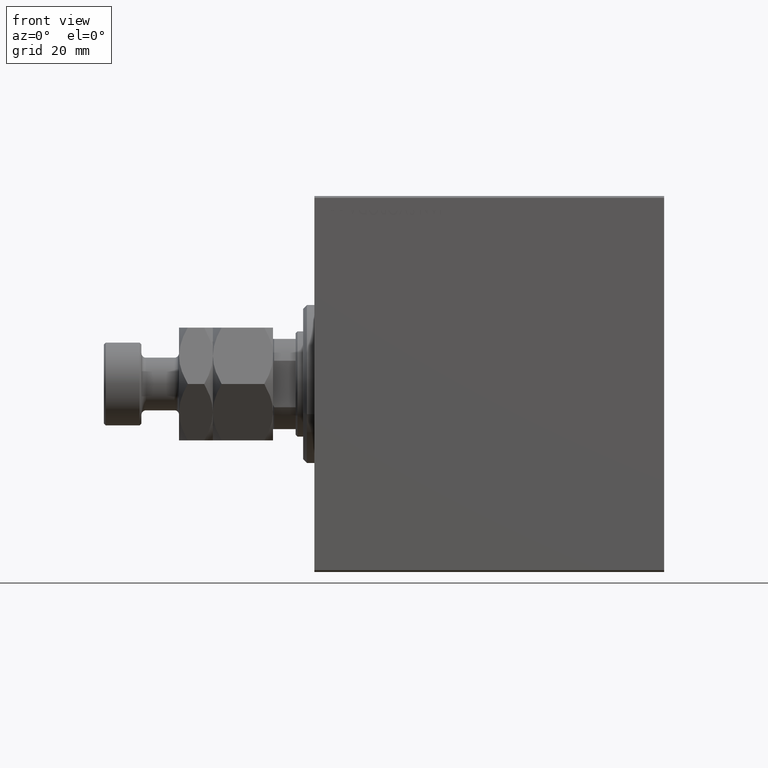
[diagram: clean part render]
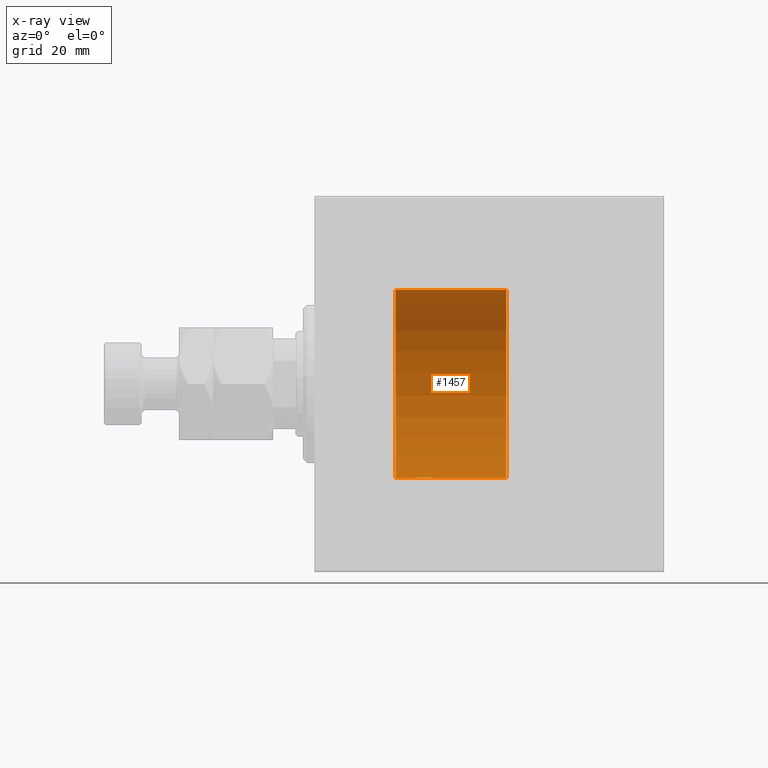
[diagram: x-ray — body ghosted, one internal face saturated and labeled with its STEP entity id]
A machine part, front view, then the same camera in x-ray: the body is ghosted and one INTERNAL B-rep face — a face not visible from any outside direction — is saturated and labeled: STEP entity #1457.
In plain terms, the highlighted cylindrical surface (partial cylindrical patch) has radius 25 mm, axis along (-1, -0, -0).
Its self-contained STEP definition (entity closure, byte-faithful):
#26 = CARTESIAN_POINT ( 'NONE',  ( 30.25371533481192898, 2.169035936979791135, -24.90589343070811168 ) ) ;
#249 = CARTESIAN_POINT ( 'NONE',  ( 31.50000000000000000, 3.061616978460191625E-15, -25.00000000000000000 ) ) ;
#475 = CARTESIAN_POINT ( 'NONE',  ( 30.98758834612092983, 1.525124164792373671, -24.95380474534676907 ) ) ;
#713 = CARTESIAN_POINT ( 'NONE',  ( 29.80463913299814038, 2.372637051600632319, -24.88723676875459034 ) ) ;
#1457 = ADVANCED_FACE ( 'NONE', ( #16472 ), #19704, .F. ) ;
#1585 = CIRCLE ( 'NONE', #5280, 25.00000000000000000 ) ;
#2391 = CARTESIAN_POINT ( 'NONE',  ( 51.00000000000000000, 0.000000000000000000, 0.000000000000000000 ) ) ;
#3108 = ORIENTED_EDGE ( 'NONE', *, *, #11932, .F. ) ;
#3660 = VECTOR ( 'NONE', #39742, 1000.000000000000000 ) ;
#3722 = CARTESIAN_POINT ( 'NONE',  ( 31.37237109198581209, 0.8054273576766401987, -24.98748174524255461 ) ) ;
#3833 = CARTESIAN_POINT ( 'NONE',  ( 31.50000000000000000, 3.061616978460191625E-15, -25.00000000000000000 ) ) ;
#4180 = CARTESIAN_POINT ( 'NONE',  ( 29.64874342732638723, 2.419890192637125459, -24.88262770889313913 ) ) ;
#5280 = AXIS2_PLACEMENT_3D ( 'NONE', #34124, #24385, #23923 ) ;
#6103 = VERTEX_POINT ( 'NONE', #24566 ) ;
#6954 = CARTESIAN_POINT ( 'NONE',  ( 27.34785002149174815, 1.883339088673197770, -24.92922739080161065 ) ) ;
#7172 = CARTESIAN_POINT ( 'NONE',  ( 26.50000000000000355, 0.1652919547268401901, -24.99999999999999289 ) ) ;
#7588 = CARTESIAN_POINT ( 'NONE',  ( 51.00000000000000000, 3.061616997868383043E-15, -25.00000000000000000 ) ) ;
#7862 = CARTESIAN_POINT ( 'NONE',  ( 28.83592030623262659, 2.499940606140140353, -24.87469189697262095 ) ) ;
#7917 = ORIENTED_EDGE ( 'NONE', *, *, #41615, .T. ) ;
#8425 = VERTEX_POINT ( 'NONE', #34332 ) ;
#8639 = CARTESIAN_POINT ( 'NONE',  ( 51.00000000000000000, 0.000000000000000000, 25.00000000000000000 ) ) ;
#9695 = AXIS2_PLACEMENT_3D ( 'NONE', #27460, #17034, #31599 ) ;
#10802 = VECTOR ( 'NONE', #36667, 1000.000000000000000 ) ;
#10863 = CARTESIAN_POINT ( 'NONE',  ( 31.41966436084114989, 0.6495680347195884607, -24.99207398768918864 ) ) ;
#11102 = CARTESIAN_POINT ( 'NONE',  ( 28.35083484000673693, 2.419847904056437127, -24.88263203448060423 ) ) ;
#11932 = EDGE_CURVE ( 'NONE', #6103, #31736, #44419, .T. ) ;
#13083 = VECTOR ( 'NONE', #22276, 1000.000000000000000 ) ;
#14331 = CARTESIAN_POINT ( 'NONE',  ( 30.10745236819796133, 2.247309494740957980, -24.89886665287248135 ) ) ;
#14559 = CARTESIAN_POINT ( 'NONE',  ( 30.88423301929986664, 1.651337078997087593, -24.94567646296264485 ) ) ;
#14795 = CARTESIAN_POINT ( 'NONE',  ( 31.50000000000000711, 0.1632133729155569590, -25.00000000000000355 ) ) ;
#14884 = CARTESIAN_POINT ( 'NONE',  ( 21.60000000000000142, 3.061616997868383043E-15, -25.00000000000000000 ) ) ;
#15023 = CARTESIAN_POINT ( 'NONE',  ( 27.01175333178059290, 1.524323445682836953, -24.95385641887458661 ) ) ;
#15644 = EDGE_CURVE ( 'NONE', #8425, #28847, #1585, .T. ) ;
#16057 = CARTESIAN_POINT ( 'NONE',  ( 51.00000000000000000, 3.061616997868383043E-15, -25.00000000000000000 ) ) ;
#16472 = FACE_OUTER_BOUND ( 'NONE', #23431, .T. ) ;
#17034 = DIRECTION ( 'NONE',  ( -1.000000000000000000, 0.000000000000000000, 0.000000000000000000 ) ) ;
#17814 = CARTESIAN_POINT ( 'NONE',  ( 31.48364115014310727, 0.3289998300458069624, -24.99834914448732448 ) ) ;
#18215 = LINE ( 'NONE', #7588, #3660 ) ;
#18782 = ORIENTED_EDGE ( 'NONE', *, *, #44670, .F. ) ;
#19704 = CYLINDRICAL_SURFACE ( 'NONE', #26402, 25.00000000000000000 ) ;
#20665 = CARTESIAN_POINT ( 'NONE',  ( 51.00000000000000000, 3.061616997868383043E-15, -25.00000000000000000 ) ) ;
#21048 = CARTESIAN_POINT ( 'NONE',  ( 27.11730287024108677, 1.652881481536634833, -24.94556728625771669 ) ) ;
#21271 = CARTESIAN_POINT ( 'NONE',  ( 27.47366496487658338, 1.986787236855548144, -24.92109717386378165 ) ) ;
#21731 = CARTESIAN_POINT ( 'NONE',  ( 26.75348321179130195, 1.109060198064591996, -24.97584694923138215 ) ) ;
#21958 = CARTESIAN_POINT ( 'NONE',  ( 29.16226476613383056, 2.500059064463610703, -24.87467999146394959 ) ) ;
#22276 = DIRECTION ( 'NONE',  ( -1.000000000000000000, -0.000000000000000000, -0.000000000000000000 ) ) ;
#22358 = VERTEX_POINT ( 'NONE', #43502 ) ;
#23431 = EDGE_LOOP ( 'NONE', ( #29536, #3108, #42161, #33056, #18782, #7917 ) ) ;
#23882 = B_SPLINE_CURVE_WITH_KNOTS ( 'NONE', 3,
 ( #31932, #7172, #38648, #39101, #43011, #21731, #28229, #15023, #21048, #6954, #21271, #28673, #42778, #32159, #11102, #25222, #7862, #21958, #35401, #4180, #713, #14331, #26, #35863, #28908, #14559, #475, #42323, #36096, #3722, #10863, #17814, #14795, #249 ),
 .UNSPECIFIED., .F., .F.,
 ( 4, 2, 2, 2, 2, 2, 2, 2, 2, 2, 2, 2, 2, 2, 2, 2, 4 ),
 ( 2.506055851151150051E-19, 0.0004888140276038939556, 0.0009776280552077876943, 0.001466442082811681433, 0.001955256110415575389, 0.002444070138019469127, 0.002932884165623362866, 0.003421698193227256605, 0.003910512220831149910, 0.004399326248435043649, 0.004888140276038937387, 0.005376954303642831126, 0.005865768331246724865, 0.006354582358850618604, 0.006843396386454512342, 0.007332210414058406081, 0.007821024441662299820 ),
 .UNSPECIFIED. ) ;
#23923 = DIRECTION ( 'NONE',  ( 0.000000000000000000, 0.000000000000000000, 1.000000000000000000 ) ) ;
#24385 = DIRECTION ( 'NONE',  ( -1.000000000000000000, 0.000000000000000000, 0.000000000000000000 ) ) ;
#24566 = CARTESIAN_POINT ( 'NONE',  ( 51.00000000000000000, 0.000000000000000000, 25.00000000000000000 ) ) ;
#25222 = CARTESIAN_POINT ( 'NONE',  ( 28.67362550772655183, 2.484060984458447141, -24.87630362147113772 ) ) ;
#26253 = LINE ( 'NONE', #16057, #10802 ) ;
#26402 = AXIS2_PLACEMENT_3D ( 'NONE', #2391, #33843, #44684 ) ;
#27460 = CARTESIAN_POINT ( 'NONE',  ( 51.00000000000000000, 0.000000000000000000, 0.000000000000000000 ) ) ;
#28229 = CARTESIAN_POINT ( 'NONE',  ( 26.83029543590130928, 1.252624798282891971, -24.96896960740658500 ) ) ;
#28673 = CARTESIAN_POINT ( 'NONE',  ( 27.74695886470063400, 2.169541443998013630, -24.90585268157804677 ) ) ;
#28847 = VERTEX_POINT ( 'NONE', #14884 ) ;
#28908 = CARTESIAN_POINT ( 'NONE',  ( 30.65075206354793380, 1.884745564839661158, -24.92912799315484662 ) ) ;
#29536 = ORIENTED_EDGE ( 'NONE', *, *, #35455, .F. ) ;
#31599 = DIRECTION ( 'NONE',  ( 0.000000000000000000, 0.000000000000000000, 1.000000000000000000 ) ) ;
#31736 = VERTEX_POINT ( 'NONE', #20665 ) ;
#31932 = CARTESIAN_POINT ( 'NONE',  ( 26.50000000000000355, -1.828402720252098442E-15, -25.00000000000000000 ) ) ;
#32159 = CARTESIAN_POINT ( 'NONE',  ( 28.19316411112866660, 2.371819214216752680, -24.88731391344728294 ) ) ;
#33056 = ORIENTED_EDGE ( 'NONE', *, *, #15644, .T. ) ;
#33843 = DIRECTION ( 'NONE',  ( -1.000000000000000000, -0.000000000000000000, -0.000000000000000000 ) ) ;
#34124 = CARTESIAN_POINT ( 'NONE',  ( 21.60000000000000142, 0.000000000000000000, 0.000000000000000000 ) ) ;
#34332 = CARTESIAN_POINT ( 'NONE',  ( 21.60000000000000142, 0.000000000000000000, 25.00000000000000000 ) ) ;
#35401 = CARTESIAN_POINT ( 'NONE',  ( 29.32801772275002605, 2.483775543901343585, -24.87633190989611265 ) ) ;
#35455 = EDGE_CURVE ( 'NONE', #31736, #44030, #26253, .T. ) ;
#35863 = CARTESIAN_POINT ( 'NONE',  ( 30.52450344187178644, 1.988066470813646403, -24.92099187803979987 ) ) ;
#36096 = CARTESIAN_POINT ( 'NONE',  ( 31.24692376408954075, 1.108237982093039697, -24.97588368351298627 ) ) ;
#36667 = DIRECTION ( 'NONE',  ( -1.000000000000000000, -0.000000000000000000, -0.000000000000000000 ) ) ;
#37301 = EDGE_CURVE ( 'NONE', #6103, #8425, #43102, .T. ) ;
#38648 = CARTESIAN_POINT ( 'NONE',  ( 26.51623131730843141, 0.3278008924763852749, -24.99836206720144105 ) ) ;
#39101 = CARTESIAN_POINT ( 'NONE',  ( 26.57980964520840672, 0.6474866336855753524, -24.99212517028518121 ) ) ;
#39742 = DIRECTION ( 'NONE',  ( -1.000000000000000000, -0.000000000000000000, -0.000000000000000000 ) ) ;
#41615 = EDGE_CURVE ( 'NONE', #22358, #44030, #23882, .T. ) ;
#42161 = ORIENTED_EDGE ( 'NONE', *, *, #37301, .T. ) ;
#42323 = CARTESIAN_POINT ( 'NONE',  ( 31.16861818252479921, 1.254434665533508797, -24.96887599906795785 ) ) ;
#42778 = CARTESIAN_POINT ( 'NONE',  ( 27.89234004476096729, 2.247131495942868096, -24.89888190765473297 ) ) ;
#43011 = CARTESIAN_POINT ( 'NONE',  ( 26.62793608542407853, 0.8063280894284485800, -24.98745245851526064 ) ) ;
#43102 = LINE ( 'NONE', #8639, #13083 ) ;
#43502 = CARTESIAN_POINT ( 'NONE',  ( 26.50000000000000355, -1.828402720252098442E-15, -25.00000000000000000 ) ) ;
#44030 = VERTEX_POINT ( 'NONE', #3833 ) ;
#44419 = CIRCLE ( 'NONE', #9695, 25.00000000000000000 ) ;
#44670 = EDGE_CURVE ( 'NONE', #22358, #28847, #18215, .T. ) ;
#44684 = DIRECTION ( 'NONE',  ( 0.000000000000000000, 0.000000000000000000, 1.000000000000000000 ) ) ;